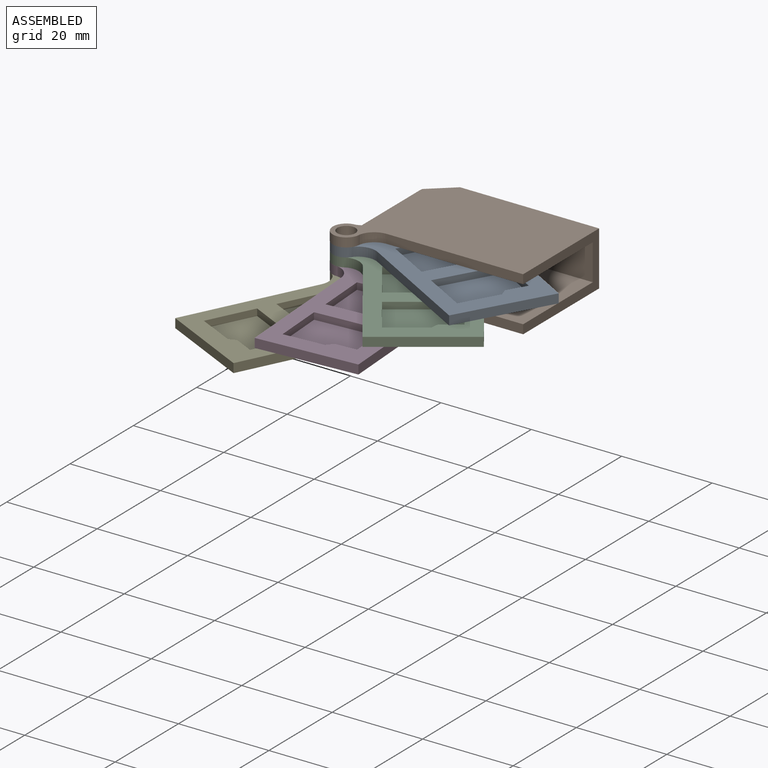
[diagram: assembled view]
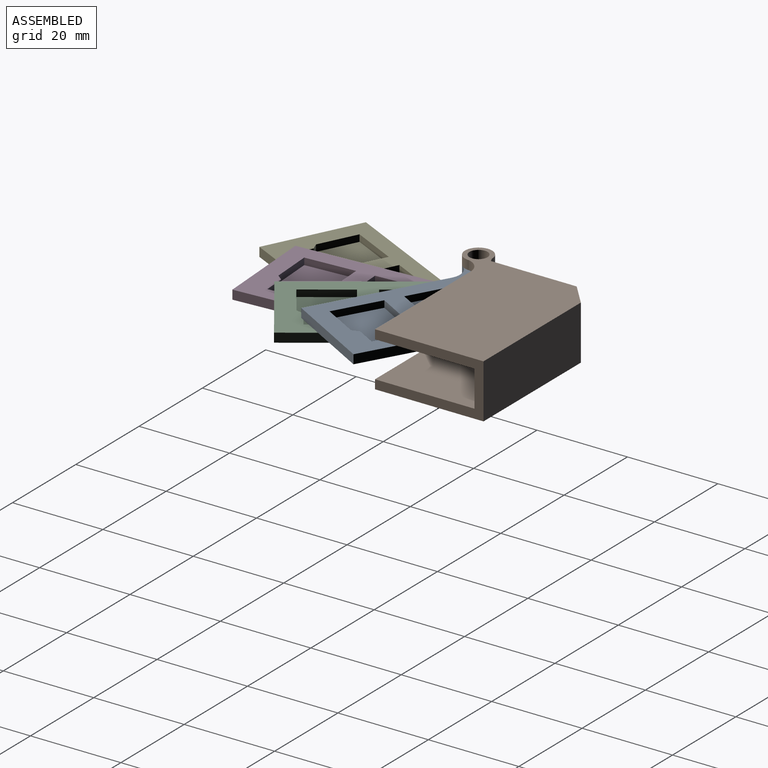
[diagram: assembled view, second angle]
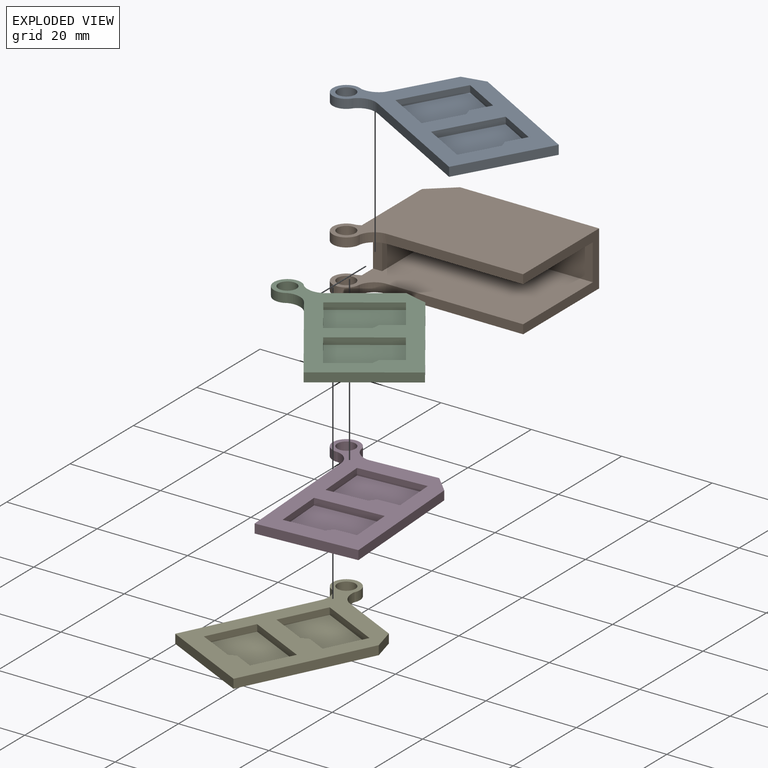
[diagram: exploded view]
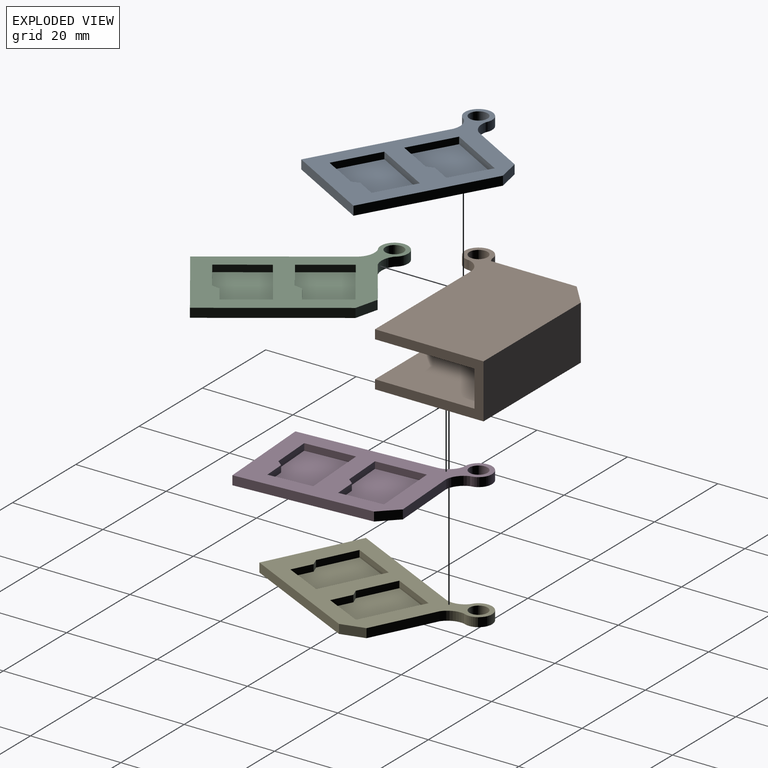
[diagram: exploded view, second angle]
ASSEMBLY  parts=5 mates=4
PART A: 25 faces, bbox 28x40x2 mm
  f0: plane 1.5x1.3mm, normal (-0.73,0.68,0), area 2.7mm2, adj f1,f20,f21,f24
  f1: plane 9x1.5mm, normal (0,1,0), area 13.5mm2, adj f0,f2,f21,f24
  f2: plane 11x1.5mm, normal (1,0,0), area 16.5mm2, adj f1,f3,f21,f24
  f3: plane 15x1.5mm, normal (0,-1,0), area 22.5mm2, adj f2,f4,f21,f24
  f4: plane 9.7x1.5mm, normal (-1,0,0), area 14.6mm2, adj f3,f20,f21,f24
  f5: plane 9.7x1.5mm, normal (-1,0,0), area 14.6mm2, adj f6,f17,f21,f23
  f6: plane 4.8x1.5mm, normal (0,1,0), area 7.2mm2, adj f5,f7,f21,f23
  f7: plane 1.5x1.3mm, normal (-0.73,0.68,0), area 2.7mm2, adj f6,f8,f21,f23
  f8: plane 9x1.5mm, normal (0,1,0), area 13.5mm2, adj f7,f9,f21,f23
  f9: plane 11x1.5mm, normal (1,0,0), area 16.5mm2, adj f8,f17,f21,f23
  f10: cylinder r=3.97mm len=4mm, axis (0,0,-1), area 10.8mm2, adj f11,f19,f21,f22
  f11: plane 30x2mm, normal (-1,0,0), area 60mm2, adj f10,f12,f21,f22
  f12: plane 22x2mm, normal (0,-1,0), area 44mm2, adj f11,f13,f21,f22
  f13: plane 30x2mm, normal (1,0,0), area 60mm2, adj f12,f14,f21,f22
  f14: plane 4x3.5mm, normal (0.75,0.66,0), area 10.6mm2, adj f13,f15,f21,f22
  f15: plane 15.15x2mm, normal (0,1,0), area 30.3mm2, adj f14,f16,f21,f22
  f16: cylinder r=4.3mm len=3.35mm, axis (0,0,-1), area 9.5mm2, adj f15,f19,f21,f22
  f17: plane 15x1.5mm, normal (0,-1,0), area 22.5mm2, adj f5,f9,f21,f23
  f18: cylinder r=2mm len=4mm, axis (0,0,-1), area 25.1mm2, adj f21,f22
  f19: cylinder r=3mm len=6mm, axis (0,0,-1), area 28.3mm2, adj f10,f16,f21,f22
  f20: plane 4.8x1.5mm, normal (0,1,0), area 7.2mm2, adj f0,f4,f21,f24
  f21: plane 40x28mm, normal (0,0,1), area 448.7mm2, adj f0,f1,f2,f3,f4,f5,f6,f7
  f22: plane 40x28mm, normal (0,0,-1), area 764.7mm2, adj f10,f11,f12,f13,f14,f15,f16,f18
  f23: plane 15x11mm, normal (0,0,1), area 158mm2, adj f5,f6,f7,f8,f9,f17
  f24: plane 15x11mm, normal (0,0,1), area 158mm2, adj f0,f1,f2,f3,f4,f20
PART B: 22 faces, bbox 30x40x12 mm
  f0: cylinder r=4.3mm len=2mm, axis (0,0,-1), area 2.2mm2, adj f6,f12,f14,f18
  f1: cylinder r=3mm len=6mm, axis (0,0,-1), area 28.3mm2, adj f5,f7,f11,f17
  f2: cylinder r=3.97mm len=4mm, axis (0,0,-1), area 10.8mm2, adj f6,f8,f12,f18
  f3: cylinder r=2mm len=4mm, axis (0,0,-1), area 25.1mm2, adj f12,f18
  f4: plane 30x2mm, normal (-1,0,0), area 60mm2, adj f7,f9,f11,f17
  f5: cylinder r=4.3mm len=2mm, axis (0,0,-1), area 2.2mm2, adj f1,f11,f14,f17
  f6: cylinder r=3mm len=6mm, axis (0,0,-1), area 28.3mm2, adj f0,f2,f12,f18
  f7: cylinder r=3.97mm len=4mm, axis (0,0,-1), area 10.8mm2, adj f1,f4,f11,f17
  f8: plane 30x2mm, normal (-1,0,0), area 60mm2, adj f2,f9,f12,f18
  f9: plane 24x12mm, normal (0,-1,0), area 112mm2, adj f4,f8,f11,f12,f13,f17,f18,f19
  f10: cylinder r=2mm len=4mm, axis (0,0,-1), area 25.1mm2, adj f11,f17
  f11: plane 40x30mm, normal (0,0,1), area 872.7mm2, adj f1,f4,f5,f7,f9,f10,f13,f14
  f12: plane 40x30mm, normal (0,0,-1), area 872.7mm2, adj f0,f2,f3,f6,f8,f9,f13,f14
  f13: plane 30.75x12mm, normal (1,0,0), area 369mm2, adj f9,f11,f12,f16
  f14: plane 18.06x12mm, normal (0,1,0), area 188.2mm2, adj f0,f5,f11,f12,f15,f17,f18,f21
  f15: plane 12x0.94mm, normal (0.04,1,0), area 11.3mm2, adj f11,f12,f14,f16
  f16: plane 12x5.21mm, normal (0.75,0.66,0), area 72.8mm2, adj f11,f12,f13,f15,f17,f18,f19,f20
  f17: plane 40x28mm, normal (0,0,-1), area 776.4mm2, adj f1,f4,f5,f7,f9,f10,f14,f16
  f18: plane 40x28mm, normal (0,0,1), area 776.4mm2, adj f0,f2,f3,f6,f8,f9,f14,f16
  f19: plane 33.04x8mm, normal (-1,0,0), area 264.3mm2, adj f9,f16,f17,f18
  f20: plane 17.16x8mm, normal (0,-1,0), area 137.3mm2, adj f16,f17,f18,f21
  f21: plane 8x2mm, normal (-1,0,0), area 16mm2, adj f14,f17,f18,f20
PART C: same geometry as A
PART D: same geometry as A
PART E: same geometry as A
PLACE A rot(axis=(0,0,1),60.5deg) t=(-53.9,38.41,-0.58)mm
PLACE B rot(axis=(0,0,1),90deg) t=(-57.23,53.79,-8.58)mm fixed
PLACE C rot(axis=(0,0,1),34.9deg) t=(-57.52,25.24,-2.58)mm
PLACE D rot(axis=(0,0,1),3.8deg) t=(-68.95,13.27,-4.58)mm
PLACE E rot(axis=(0,0,-1),26.3deg) t=(-84.35,8.94,-6.58)mm
MATE revolute E.f18 <-> D.f18  axis (0,0,1) through (-84.73,39.79,-4.58)mm
MATE revolute B.f1 <-> E.f18  axis (0,0,1) through (-84.73,39.79,-6.58)mm
MATE revolute D.f18 <-> C.f18  axis (0,0,1) through (-84.73,39.79,-2.58)mm
MATE revolute A.f18 <-> C.f18  axis (0,0,-1) through (-84.73,39.79,-0.58)mm
